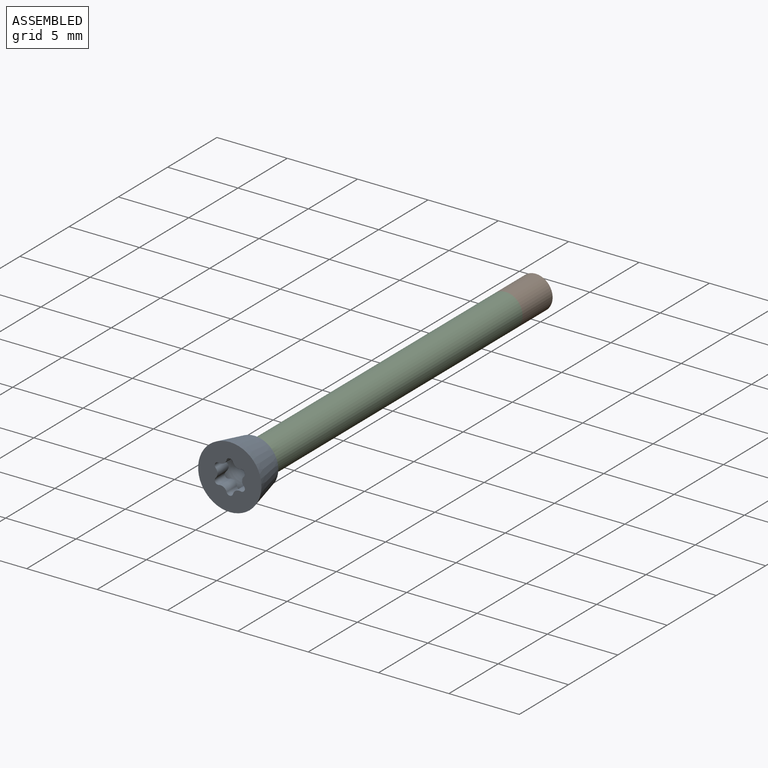
[diagram: assembled view]
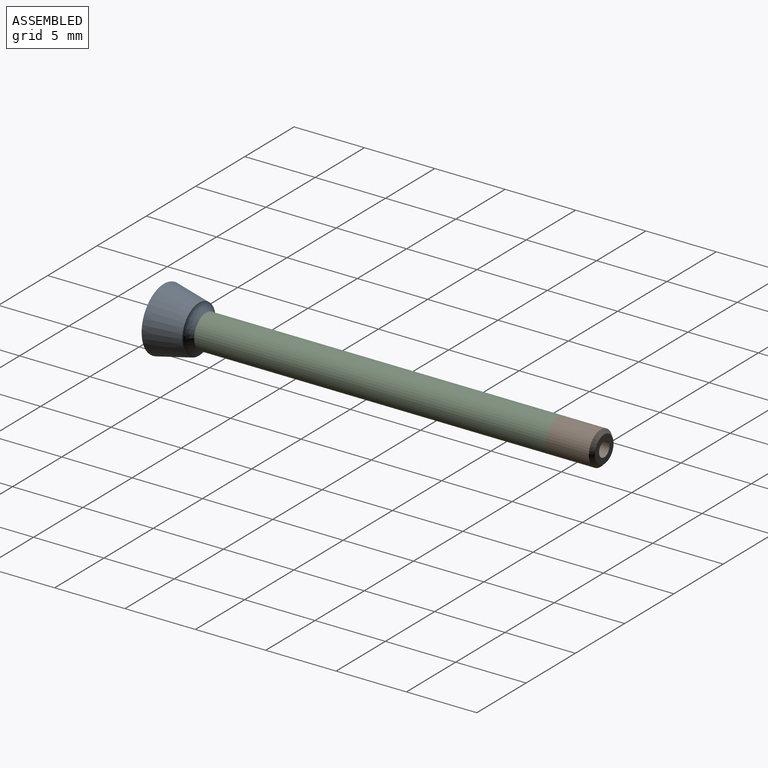
[diagram: assembled view, second angle]
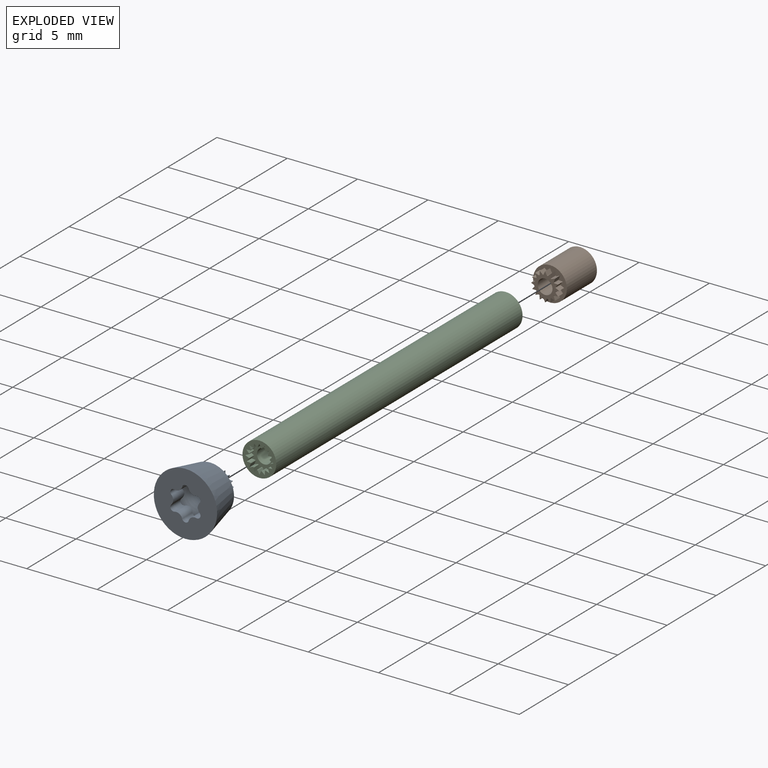
[diagram: exploded view]
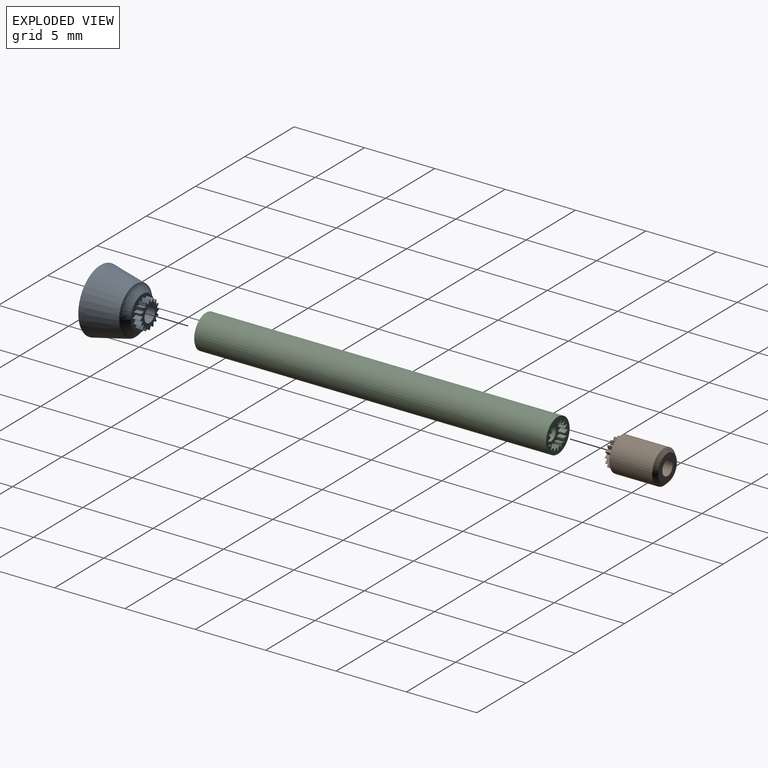
[diagram: exploded view, second angle]
ASSEMBLY  parts=3 mates=2
PART A: 67 faces, bbox 4.5x3.5x4.5 mm
  f0: plane 4.5x4.5mm, normal (0,-1,0), area 12.6mm2, adj f1,f53,f54,f55,f56,f57,f58,f59
  f1: cone r=1.7mm half-angle=12.4deg, axis (0,-1,0), area 31.8mm2, adj f0,f3
  f2: plane 2.4x2.4mm, normal (0,1,0), area 2.3mm2, adj f3,f4,f5,f6,f7,f8,f9,f10
  f3: bspline ~3.4x3.4mm, area 6.5mm2, adj f1,f2
  f4: plane 0.5x0.21mm, normal (-0.68,0,0.74), area 0.1mm2, adj f2,f5,f51,f52
  f5: plane 0.5x0.29mm, normal (1,0,0.04), area 0.1mm2, adj f2,f4,f6,f52
  f6: cylinder r=0.75mm len=0.5mm, axis (0,-1,0), area 0mm2, adj f2,f5,f7,f52
  f7: plane 0.5x0.27mm, normal (-0.34,0,0.94), area 0.1mm2, adj f2,f6,f8,f52
  f8: plane 0.5x0.27mm, normal (0.94,0,-0.34), area 0.1mm2, adj f2,f7,f9,f52
  f9: cylinder r=0.75mm len=0.5mm, axis (0,-1,0), area 0mm2, adj f2,f8,f10,f52
  f10: plane 0.5x0.29mm, normal (0.04,0,1), area 0.1mm2, adj f2,f9,f11,f52
  f11: plane 0.5x0.21mm, normal (0.74,0,-0.68), area 0.1mm2, adj f2,f10,f12,f52
  f12: cylinder r=0.75mm len=0.5mm, axis (0,-1,0), area 0mm2, adj f2,f11,f13,f52
  f13: plane 0.5x0.26mm, normal (0.42,0,0.91), area 0.1mm2, adj f2,f12,f14,f52
  f14: plane 0.5x0.26mm, normal (0.42,0,-0.91), area 0.1mm2, adj f2,f13,f15,f52
  f15: cylinder r=0.75mm len=0.5mm, axis (0,-1,0), area 0mm2, adj f2,f14,f16,f52
  f16: plane 0.5x0.21mm, normal (0.74,0,0.68), area 0.1mm2, adj f2,f15,f17,f52
  f17: plane 0.5x0.29mm, normal (0.04,0,-1), area 0.1mm2, adj f2,f16,f18,f52
  f18: cylinder r=0.75mm len=0.5mm, axis (0,-1,0), area 0mm2, adj f2,f17,f19,f52
  f19: plane 0.5x0.27mm, normal (0.94,0,0.34), area 0.1mm2, adj f2,f18,f20,f52
  f20: plane 0.5x0.27mm, normal (-0.34,0,-0.94), area 0.1mm2, adj f2,f19,f21,f52
  f21: cylinder r=0.75mm len=0.5mm, axis (0,-1,0), area 0mm2, adj f2,f20,f22,f52
  f22: plane 0.5x0.29mm, normal (1,0,-0.04), area 0.1mm2, adj f2,f21,f23,f52
  f23: plane 0.5x0.21mm, normal (-0.68,0,-0.74), area 0.1mm2, adj f2,f22,f24,f52
  f24: cylinder r=0.75mm len=0.5mm, axis (0,-1,0), area 0mm2, adj f2,f23,f25,f52
  f25: plane 0.5x0.26mm, normal (0.91,0,-0.42), area 0.1mm2, adj f2,f24,f26,f52
  f26: plane 0.5x0.26mm, normal (-0.91,0,-0.42), area 0.1mm2, adj f2,f25,f27,f52
  f27: cylinder r=0.75mm len=0.5mm, axis (0,-1,0), area 0mm2, adj f2,f26,f28,f52
  f28: plane 0.5x0.21mm, normal (0.68,0,-0.74), area 0.1mm2, adj f2,f27,f29,f52
  f29: plane 0.5x0.29mm, normal (-1,0,-0.04), area 0.1mm2, adj f2,f28,f30,f52
  f30: cylinder r=0.75mm len=0.5mm, axis (0,-1,0), area 0mm2, adj f2,f29,f31,f52
  f31: plane 0.5x0.27mm, normal (0.34,0,-0.94), area 0.1mm2, adj f2,f30,f32,f52
  f32: plane 0.5x0.27mm, normal (-0.94,0,0.34), area 0.1mm2, adj f2,f31,f33,f52
  f33: cylinder r=0.75mm len=0.5mm, axis (0,-1,0), area 0mm2, adj f2,f32,f34,f52
  f34: plane 0.5x0.29mm, normal (-0.04,0,-1), area 0.1mm2, adj f2,f33,f35,f52
  f35: plane 0.5x0.21mm, normal (-0.74,0,0.68), area 0.1mm2, adj f2,f34,f36,f52
  f36: cylinder r=0.75mm len=0.5mm, axis (0,-1,0), area 0mm2, adj f2,f35,f37,f52
  f37: plane 0.5x0.26mm, normal (-0.42,0,-0.91), area 0.1mm2, adj f2,f36,f38,f52
  f38: plane 0.5x0.26mm, normal (-0.42,0,0.91), area 0.1mm2, adj f2,f37,f39,f52
  f39: cylinder r=0.75mm len=0.5mm, axis (0,-1,0), area 0mm2, adj f2,f38,f40,f52
  f40: plane 0.5x0.21mm, normal (-0.74,0,-0.68), area 0.1mm2, adj f2,f39,f41,f52
  f41: plane 0.5x0.29mm, normal (-0.04,0,1), area 0.1mm2, adj f2,f40,f42,f52
  f42: cylinder r=0.75mm len=0.5mm, axis (0,-1,0), area 0mm2, adj f2,f41,f43,f52
  f43: plane 0.5x0.27mm, normal (-0.94,0,-0.34), area 0.1mm2, adj f2,f42,f44,f52
  f44: plane 0.5x0.27mm, normal (0.34,0,0.94), area 0.1mm2, adj f2,f43,f45,f52
  f45: cylinder r=0.75mm len=0.5mm, axis (0,-1,0), area 0mm2, adj f2,f44,f46,f52
  f46: plane 0.5x0.29mm, normal (-1,0,0.04), area 0.1mm2, adj f2,f45,f47,f52
  f47: plane 0.5x0.21mm, normal (0.68,0,0.74), area 0.1mm2, adj f2,f46,f48,f52
  f48: cylinder r=0.75mm len=0.5mm, axis (0,-1,0), area 0mm2, adj f2,f47,f49,f52
  f49: plane 0.5x0.26mm, normal (-0.91,0,0.42), area 0.1mm2, adj f2,f48,f50,f52
  f50: plane 0.5x0.26mm, normal (0.91,0,0.42), area 0.1mm2, adj f2,f49,f51,f52
  f51: cylinder r=0.75mm len=0.5mm, axis (0,-1,0), area 0mm2, adj f2,f4,f50,f52
  f52: plane 2x2mm, normal (0,1,0), area 1.4mm2, adj f4,f5,f6,f7,f8,f9,f10,f11
  f53: cylinder r=0.45mm len=1.14mm, axis (0,-1,0), area 0.8mm2, adj f0,f54,f64,f66
  f54: cylinder r=0.24mm len=1.05mm, axis (0,-1,0), area 0.6mm2, adj f0,f53,f55,f66
  f55: cylinder r=0.45mm len=1.05mm, axis (0,-1,0), area 0.7mm2, adj f0,f54,f56,f66
  f56: cylinder r=0.24mm len=1.05mm, axis (0,-1,0), area 0.6mm2, adj f0,f55,f57,f66
  f57: cylinder r=0.45mm len=1.05mm, axis (0,-1,0), area 0.7mm2, adj f0,f56,f58,f66
  f58: cylinder r=0.24mm len=1.05mm, axis (0,-1,0), area 0.6mm2, adj f0,f57,f59,f66
  f59: cylinder r=0.45mm len=1.05mm, axis (0,-1,0), area 0.7mm2, adj f0,f58,f60,f66
  f60: cylinder r=0.24mm len=1.05mm, axis (0,-1,0), area 0.6mm2, adj f0,f59,f61,f66
  f61: cylinder r=0.45mm len=1.05mm, axis (0,-1,0), area 0.7mm2, adj f0,f60,f62,f66
  f62: cylinder r=0.24mm len=1.05mm, axis (0,-1,0), area 0.6mm2, adj f0,f61,f63,f66
  f63: cylinder r=0.45mm len=1.05mm, axis (0,-1,0), area 0.7mm2, adj f0,f62,f64,f66
  f64: cylinder r=0.24mm len=1.05mm, axis (0,-1,0), area 0.6mm2, adj f0,f53,f63,f66
  f65: cylinder r=0.53mm len=1.7mm, axis (0,1,0), area 5.6mm2, adj f52,f66
  f66: torus R=1.32mm, axis (0,-1,0), area 4.2mm2, adj f53,f54,f55,f56,f57,f58,f59,f60
PART B: 54 faces, bbox 2.4x3.8x2.4 mm
  f0: cylinder r=0.53mm len=3.8mm, axis (0,1,0), area 12.5mm2, adj f2,f5
  f1: cylinder r=1.2mm len=3.05mm, axis (0,1,0), area 23mm2, adj f3,f4
  f2: plane 1.9x1.9mm, normal (0,-1,0), area 2mm2, adj f0,f4
  f3: plane 2.4x2.4mm, normal (0,1,0), area 2.3mm2, adj f1,f6,f7,f8,f9,f10,f11,f12
  f4: cone r=0.95mm half-angle=45deg, axis (0,1,0), area 2.4mm2, adj f1,f2
  f5: plane 2x2mm, normal (0,1,0), area 1.4mm2, adj f0,f6,f7,f8,f9,f10,f11,f12
  f6: cylinder r=0.75mm len=0.5mm, axis (0,-1,0), area 0mm2, adj f3,f5,f7,f53
  f7: plane 0.5x0.26mm, normal (0.91,0,0.42), area 0.1mm2, adj f3,f5,f6,f8
  f8: plane 0.5x0.26mm, normal (-0.9,0,0.44), area 0.1mm2, adj f3,f5,f7,f9
  f9: cylinder r=0.75mm len=0.5mm, axis (0,-1,0), area 0mm2, adj f3,f5,f8,f10
  f10: plane 0.5x0.21mm, normal (0.68,0,0.74), area 0.1mm2, adj f3,f5,f9,f11
  f11: plane 0.5x0.29mm, normal (-1,0,0.07), area 0.1mm2, adj f3,f5,f10,f12
  f12: cylinder r=0.75mm len=0.5mm, axis (0,-1,0), area 0mm2, adj f3,f5,f11,f13
  f13: plane 0.5x0.27mm, normal (0.34,0,0.94), area 0.1mm2, adj f3,f5,f12,f14
  f14: plane 0.5x0.28mm, normal (-0.95,0,-0.32), area 0.1mm2, adj f3,f5,f13,f15
  f15: cylinder r=0.75mm len=0.5mm, axis (0,-1,0), area 0mm2, adj f3,f5,f14,f16
  f16: plane 0.5x0.29mm, normal (-0.04,0,1), area 0.1mm2, adj f3,f5,f15,f17
  f17: plane 0.5x0.22mm, normal (-0.75,0,-0.66), area 0.1mm2, adj f3,f5,f16,f18
  f18: cylinder r=0.75mm len=0.5mm, axis (0,-1,0), area 0mm2, adj f3,f5,f17,f19
  f19: plane 0.5x0.26mm, normal (-0.42,0,0.91), area 0.1mm2, adj f3,f5,f18,f20
  f20: plane 0.5x0.26mm, normal (-0.44,0,-0.9), area 0.1mm2, adj f3,f5,f19,f21
  f21: cylinder r=0.75mm len=0.5mm, axis (0,-1,0), area 0mm2, adj f3,f5,f20,f22
  f22: plane 0.5x0.21mm, normal (-0.74,0,0.68), area 0.1mm2, adj f3,f5,f21,f23
  f23: plane 0.5x0.29mm, normal (-0.07,0,-1), area 0.1mm2, adj f3,f5,f22,f24
  f24: cylinder r=0.75mm len=0.5mm, axis (0,-1,0), area 0mm2, adj f3,f5,f23,f25
  f25: plane 0.5x0.27mm, normal (-0.94,0,0.34), area 0.1mm2, adj f3,f5,f24,f26
  f26: plane 0.5x0.28mm, normal (0.32,0,-0.95), area 0.1mm2, adj f3,f5,f25,f27
  f27: cylinder r=0.75mm len=0.5mm, axis (0,-1,0), area 0mm2, adj f3,f5,f26,f28
  f28: plane 0.5x0.29mm, normal (-1,0,-0.04), area 0.1mm2, adj f3,f5,f27,f29
  f29: plane 0.5x0.22mm, normal (0.66,0,-0.75), area 0.1mm2, adj f3,f5,f28,f30
  f30: cylinder r=0.75mm len=0.5mm, axis (0,-1,0), area 0mm2, adj f3,f5,f29,f31
  f31: plane 0.5x0.26mm, normal (-0.91,0,-0.42), area 0.1mm2, adj f3,f5,f30,f32
  f32: plane 0.5x0.26mm, normal (0.9,0,-0.44), area 0.1mm2, adj f3,f5,f31,f33
  f33: cylinder r=0.75mm len=0.5mm, axis (0,-1,0), area 0mm2, adj f3,f5,f32,f34
  f34: plane 0.5x0.21mm, normal (-0.68,0,-0.74), area 0.1mm2, adj f3,f5,f33,f35
  f35: plane 0.5x0.29mm, normal (1,0,-0.07), area 0.1mm2, adj f3,f5,f34,f36
  f36: cylinder r=0.75mm len=0.5mm, axis (0,-1,0), area 0mm2, adj f3,f5,f35,f37
  f37: plane 0.5x0.27mm, normal (-0.34,0,-0.94), area 0.1mm2, adj f3,f5,f36,f38
  f38: plane 0.5x0.28mm, normal (0.95,0,0.32), area 0.1mm2, adj f3,f5,f37,f39
  f39: cylinder r=0.75mm len=0.5mm, axis (0,-1,0), area 0mm2, adj f3,f5,f38,f40
  f40: plane 0.5x0.29mm, normal (0.04,0,-1), area 0.1mm2, adj f3,f5,f39,f41
  f41: plane 0.5x0.22mm, normal (0.75,0,0.66), area 0.1mm2, adj f3,f5,f40,f42
  f42: cylinder r=0.75mm len=0.5mm, axis (0,-1,0), area 0mm2, adj f3,f5,f41,f43
  f43: plane 0.5x0.26mm, normal (0.42,0,-0.91), area 0.1mm2, adj f3,f5,f42,f44
  f44: plane 0.5x0.26mm, normal (0.44,0,0.9), area 0.1mm2, adj f3,f5,f43,f45
  f45: cylinder r=0.75mm len=0.5mm, axis (0,-1,0), area 0mm2, adj f3,f5,f44,f46
  f46: plane 0.5x0.21mm, normal (0.74,0,-0.68), area 0.1mm2, adj f3,f5,f45,f47
  f47: plane 0.5x0.29mm, normal (0.07,0,1), area 0.1mm2, adj f3,f5,f46,f48
  f48: cylinder r=0.75mm len=0.5mm, axis (0,-1,0), area 0mm2, adj f3,f5,f47,f49
  f49: plane 0.5x0.27mm, normal (0.94,0,-0.34), area 0.1mm2, adj f3,f5,f48,f50
  f50: plane 0.5x0.28mm, normal (-0.32,0,0.95), area 0.1mm2, adj f3,f5,f49,f51
  f51: cylinder r=0.75mm len=0.5mm, axis (0,-1,0), area 0mm2, adj f3,f5,f50,f52
  f52: plane 0.5x0.29mm, normal (1,0,0.04), area 0.1mm2, adj f3,f5,f51,f53
  f53: plane 0.5x0.22mm, normal (-0.66,0,0.75), area 0.1mm2, adj f3,f5,f6,f52
PART C: 102 faces, bbox 2.4x25x2.4 mm
  f0: cylinder r=1.2mm len=25mm, axis (0,1,0), area 188.5mm2, adj f1,f2
  f1: plane 2.4x2.4mm, normal (0,-1,0), area 2.3mm2, adj f0,f3,f4,f5,f6,f7,f8,f9
  f2: plane 2.4x2.4mm, normal (0,1,0), area 2.3mm2, adj f0,f52,f53,f54,f55,f56,f57,f58
  f3: plane 0.5x0.21mm, normal (0.67,0,0.74), area 0.1mm2, adj f1,f4,f50,f51
  f4: plane 0.5x0.29mm, normal (-1,0,0.04), area 0.1mm2, adj f1,f3,f5,f51
  f5: cylinder r=0.75mm len=0.5mm, axis (0,-1,0), area 0mm2, adj f1,f4,f6,f51
  f6: plane 0.5x0.27mm, normal (0.34,0,0.94), area 0.1mm2, adj f1,f5,f7,f51
  f7: plane 0.5x0.27mm, normal (-0.94,0,-0.34), area 0.1mm2, adj f1,f6,f8,f51
  f8: cylinder r=0.75mm len=0.5mm, axis (0,-1,0), area 0mm2, adj f1,f7,f9,f51
  f9: plane 0.5x0.29mm, normal (-0.05,0,1), area 0.1mm2, adj f1,f8,f10,f51
  f10: plane 0.5x0.21mm, normal (-0.74,0,-0.68), area 0.1mm2, adj f1,f9,f11,f51
  f11: cylinder r=0.75mm len=0.5mm, axis (0,-1,0), area 0mm2, adj f1,f10,f12,f51
  f12: plane 0.5x0.26mm, normal (-0.42,0,0.91), area 0.1mm2, adj f1,f11,f13,f51
  f13: plane 0.5x0.26mm, normal (-0.42,0,-0.91), area 0.1mm2, adj f1,f12,f14,f51
  f14: cylinder r=0.75mm len=0.5mm, axis (0,-1,0), area 0mm2, adj f1,f13,f15,f51
  f15: plane 0.5x0.21mm, normal (-0.74,0,0.67), area 0.1mm2, adj f1,f14,f16,f51
  f16: plane 0.5x0.29mm, normal (-0.04,0,-1), area 0.1mm2, adj f1,f15,f17,f51
  f17: cylinder r=0.75mm len=0.5mm, axis (0,-1,0), area 0mm2, adj f1,f16,f18,f51
  f18: plane 0.5x0.27mm, normal (-0.94,0,0.34), area 0.1mm2, adj f1,f17,f19,f51
  f19: plane 0.5x0.27mm, normal (0.34,0,-0.94), area 0.1mm2, adj f1,f18,f20,f51
  f20: cylinder r=0.75mm len=0.5mm, axis (0,-1,0), area 0mm2, adj f1,f19,f21,f51
  f21: plane 0.5x0.29mm, normal (-1,0,-0.05), area 0.1mm2, adj f1,f20,f22,f51
  f22: plane 0.5x0.21mm, normal (0.68,0,-0.74), area 0.1mm2, adj f1,f21,f23,f51
  f23: cylinder r=0.75mm len=0.5mm, axis (0,-1,0), area 0mm2, adj f1,f22,f24,f51
  f24: plane 0.5x0.26mm, normal (-0.91,0,-0.42), area 0.1mm2, adj f1,f23,f25,f51
  f25: plane 0.5x0.26mm, normal (0.91,0,-0.42), area 0.1mm2, adj f1,f24,f26,f51
  f26: cylinder r=0.75mm len=0.5mm, axis (0,-1,0), area 0mm2, adj f1,f25,f27,f51
  f27: plane 0.5x0.21mm, normal (-0.67,0,-0.74), area 0.1mm2, adj f1,f26,f28,f51
  f28: plane 0.5x0.29mm, normal (1,0,-0.04), area 0.1mm2, adj f1,f27,f29,f51
  f29: cylinder r=0.75mm len=0.5mm, axis (0,-1,0), area 0mm2, adj f1,f28,f30,f51
  f30: plane 0.5x0.27mm, normal (-0.34,0,-0.94), area 0.1mm2, adj f1,f29,f31,f51
  f31: plane 0.5x0.27mm, normal (0.94,0,0.34), area 0.1mm2, adj f1,f30,f32,f51
  f32: cylinder r=0.75mm len=0.5mm, axis (0,-1,0), area 0mm2, adj f1,f31,f33,f51
  f33: plane 0.5x0.29mm, normal (0.05,0,-1), area 0.1mm2, adj f1,f32,f34,f51
  f34: plane 0.5x0.21mm, normal (0.74,0,0.68), area 0.1mm2, adj f1,f33,f35,f51
  f35: cylinder r=0.75mm len=0.5mm, axis (0,-1,0), area 0mm2, adj f1,f34,f36,f51
  f36: plane 0.5x0.26mm, normal (0.42,0,-0.91), area 0.1mm2, adj f1,f35,f37,f51
  f37: plane 0.5x0.26mm, normal (0.42,0,0.91), area 0.1mm2, adj f1,f36,f38,f51
  f38: cylinder r=0.75mm len=0.5mm, axis (0,-1,0), area 0mm2, adj f1,f37,f39,f51
  f39: plane 0.5x0.21mm, normal (0.74,0,-0.67), area 0.1mm2, adj f1,f38,f40,f51
  f40: plane 0.5x0.29mm, normal (0.04,0,1), area 0.1mm2, adj f1,f39,f41,f51
  f41: cylinder r=0.75mm len=0.5mm, axis (0,-1,0), area 0mm2, adj f1,f40,f42,f51
  f42: plane 0.5x0.27mm, normal (0.94,0,-0.34), area 0.1mm2, adj f1,f41,f43,f51
  f43: plane 0.5x0.27mm, normal (-0.34,0,0.94), area 0.1mm2, adj f1,f42,f44,f51
  f44: cylinder r=0.75mm len=0.5mm, axis (0,-1,0), area 0mm2, adj f1,f43,f45,f51
  f45: plane 0.5x0.29mm, normal (1,0,0.05), area 0.1mm2, adj f1,f44,f46,f51
  f46: plane 0.5x0.21mm, normal (-0.68,0,0.74), area 0.1mm2, adj f1,f45,f47,f51
  f47: cylinder r=0.75mm len=0.5mm, axis (0,-1,0), area 0mm2, adj f1,f46,f48,f51
  f48: plane 0.5x0.26mm, normal (0.91,0,0.42), area 0.1mm2, adj f1,f47,f49,f51
  f49: plane 0.5x0.26mm, normal (-0.91,0,0.42), area 0.1mm2, adj f1,f48,f50,f51
  f50: cylinder r=0.75mm len=0.5mm, axis (0,-1,0), area 0mm2, adj f1,f3,f49,f51
  f51: plane 2x2mm, normal (0,-1,0), area 1.4mm2, adj f3,f4,f5,f6,f7,f8,f9,f10
  f52: plane 0.5x0.21mm, normal (0.67,0,-0.74), area 0.1mm2, adj f2,f53,f99,f100
  f53: plane 0.5x0.28mm, normal (-1,0,-0.03), area 0.1mm2, adj f2,f52,f54,f100
  f54: cylinder r=0.75mm len=0.5mm, axis (0,1,0), area 0mm2, adj f2,f53,f55,f100
  f55: plane 0.5x0.27mm, normal (0.34,0,-0.94), area 0.1mm2, adj f2,f54,f56,f100
  f56: plane 0.5x0.27mm, normal (-0.94,0,0.35), area 0.1mm2, adj f2,f55,f57,f100
  f57: cylinder r=0.75mm len=0.5mm, axis (0,1,0), area 0mm2, adj f2,f56,f58,f100
  f58: plane 0.5x0.29mm, normal (-0.05,0,-1), area 0.1mm2, adj f2,f57,f59,f100
  f59: plane 0.5x0.21mm, normal (-0.73,0,0.68), area 0.1mm2, adj f2,f58,f60,f100
  f60: cylinder r=0.75mm len=0.5mm, axis (0,1,0), area 0mm2, adj f2,f59,f61,f100
  f61: plane 0.5x0.26mm, normal (-0.42,0,-0.91), area 0.1mm2, adj f2,f60,f62,f100
  f62: plane 0.5x0.26mm, normal (-0.41,0,0.91), area 0.1mm2, adj f2,f61,f63,f100
  f63: cylinder r=0.75mm len=0.5mm, axis (0,1,0), area 0mm2, adj f2,f62,f64,f100
  f64: plane 0.5x0.21mm, normal (-0.74,0,-0.67), area 0.1mm2, adj f2,f63,f65,f100
  f65: plane 0.5x0.28mm, normal (-0.03,0,1), area 0.1mm2, adj f2,f64,f66,f100
  f66: cylinder r=0.75mm len=0.5mm, axis (0,1,0), area 0mm2, adj f2,f65,f67,f100
  f67: plane 0.5x0.27mm, normal (-0.94,0,-0.34), area 0.1mm2, adj f2,f66,f68,f100
  f68: plane 0.5x0.27mm, normal (0.35,0,0.94), area 0.1mm2, adj f2,f67,f69,f100
  f69: cylinder r=0.75mm len=0.5mm, axis (0,1,0), area 0mm2, adj f2,f68,f70,f100
  f70: plane 0.5x0.29mm, normal (-1,0,0.05), area 0.1mm2, adj f2,f69,f71,f100
  f71: plane 0.5x0.21mm, normal (0.68,0,0.73), area 0.1mm2, adj f2,f70,f72,f100
  f72: cylinder r=0.75mm len=0.5mm, axis (0,1,0), area 0mm2, adj f2,f71,f73,f100
  f73: plane 0.5x0.26mm, normal (-0.91,0,0.42), area 0.1mm2, adj f2,f72,f74,f100
  f74: plane 0.5x0.26mm, normal (0.91,0,0.41), area 0.1mm2, adj f2,f73,f75,f100
  f75: cylinder r=0.75mm len=0.5mm, axis (0,1,0), area 0mm2, adj f2,f74,f76,f100
  f76: plane 0.5x0.21mm, normal (-0.67,0,0.74), area 0.1mm2, adj f2,f75,f77,f100
  f77: plane 0.5x0.28mm, normal (1,0,0.03), area 0.1mm2, adj f2,f76,f78,f100
  f78: cylinder r=0.75mm len=0.5mm, axis (0,1,0), area 0mm2, adj f2,f77,f79,f100
  f79: plane 0.5x0.27mm, normal (-0.34,0,0.94), area 0.1mm2, adj f2,f78,f80,f100
  f80: plane 0.5x0.27mm, normal (0.94,0,-0.35), area 0.1mm2, adj f2,f79,f81,f100
  f81: cylinder r=0.75mm len=0.5mm, axis (0,1,0), area 0mm2, adj f2,f80,f82,f100
  f82: plane 0.5x0.29mm, normal (0.05,0,1), area 0.1mm2, adj f2,f81,f83,f100
  f83: plane 0.5x0.21mm, normal (0.73,0,-0.68), area 0.1mm2, adj f2,f82,f84,f100
  f84: cylinder r=0.75mm len=0.5mm, axis (0,1,0), area 0mm2, adj f2,f83,f85,f100
  f85: plane 0.5x0.26mm, normal (0.42,0,0.91), area 0.1mm2, adj f2,f84,f86,f100
  f86: plane 0.5x0.26mm, normal (0.41,0,-0.91), area 0.1mm2, adj f2,f85,f87,f100
  f87: cylinder r=0.75mm len=0.5mm, axis (0,1,0), area 0mm2, adj f2,f86,f88,f100
  f88: plane 0.5x0.21mm, normal (0.74,0,0.67), area 0.1mm2, adj f2,f87,f89,f100
  f89: plane 0.5x0.28mm, normal (0.03,0,-1), area 0.1mm2, adj f2,f88,f90,f100
  f90: cylinder r=0.75mm len=0.5mm, axis (0,1,0), area 0mm2, adj f2,f89,f91,f100
  f91: plane 0.5x0.27mm, normal (0.94,0,0.34), area 0.1mm2, adj f2,f90,f92,f100
  f92: plane 0.5x0.27mm, normal (-0.35,0,-0.94), area 0.1mm2, adj f2,f91,f93,f100
  f93: cylinder r=0.75mm len=0.5mm, axis (0,1,0), area 0mm2, adj f2,f92,f94,f100
  f94: plane 0.5x0.29mm, normal (1,0,-0.05), area 0.1mm2, adj f2,f93,f95,f100
  f95: plane 0.5x0.21mm, normal (-0.68,0,-0.73), area 0.1mm2, adj f2,f94,f96,f100
  f96: cylinder r=0.75mm len=0.5mm, axis (0,1,0), area 0mm2, adj f2,f95,f97,f100
  f97: plane 0.5x0.26mm, normal (0.91,0,-0.42), area 0.1mm2, adj f2,f96,f98,f100
  f98: plane 0.5x0.26mm, normal (-0.91,0,-0.41), area 0.1mm2, adj f2,f97,f99,f100
  f99: cylinder r=0.75mm len=0.5mm, axis (0,1,0), area 0mm2, adj f2,f52,f98,f100
  f100: plane 2x2mm, normal (0,1,0), area 1.4mm2, adj f52,f53,f54,f55,f56,f57,f58,f59
  f101: cylinder r=0.53mm len=24mm, axis (0,-1,0), area 79.2mm2, adj f51,f100
PLACE A t=(0.81,-10.18,3.52)mm
PLACE B rot(axis=(1,0,0),180deg) t=(0.81,15.32,3.52)mm
PLACE C t=(0.81,15.32,3.52)mm
MATE fastened B.f0 <-> C.f101  axis (0,-1,0) through (0.81,14.82,3.52)mm
MATE fastened A.f65 <-> C.f101  axis (0,1,0) through (0.81,-9.18,3.52)mm
